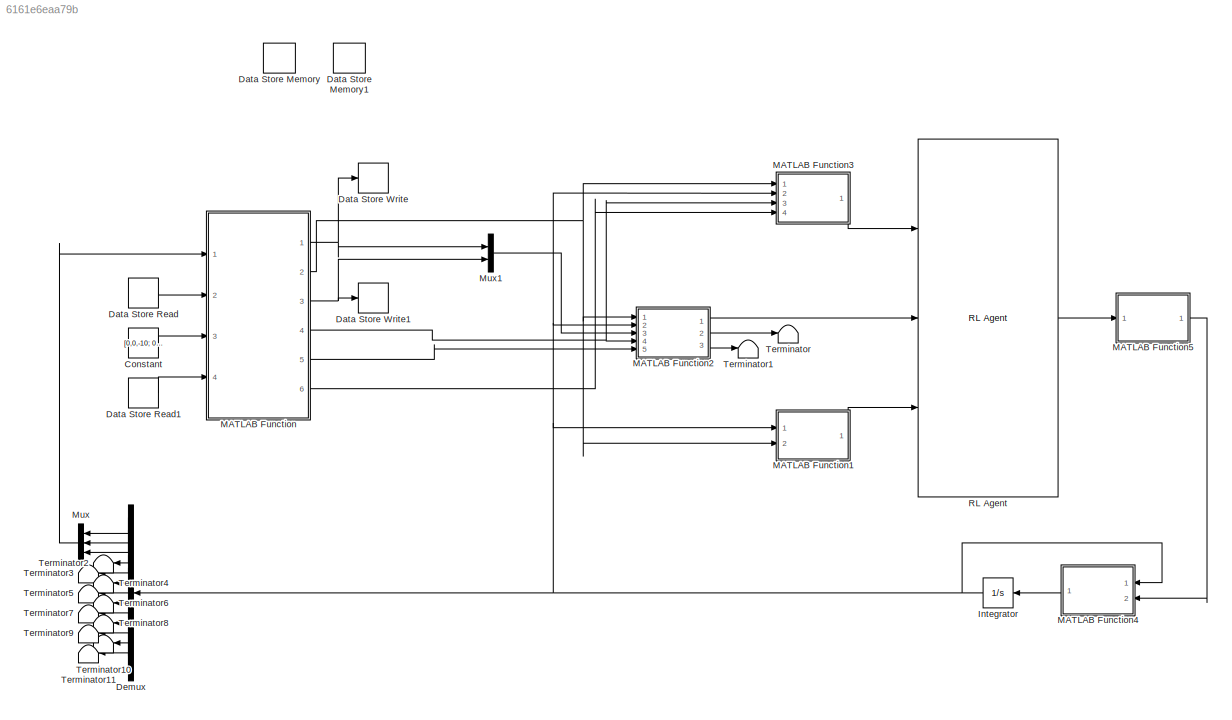
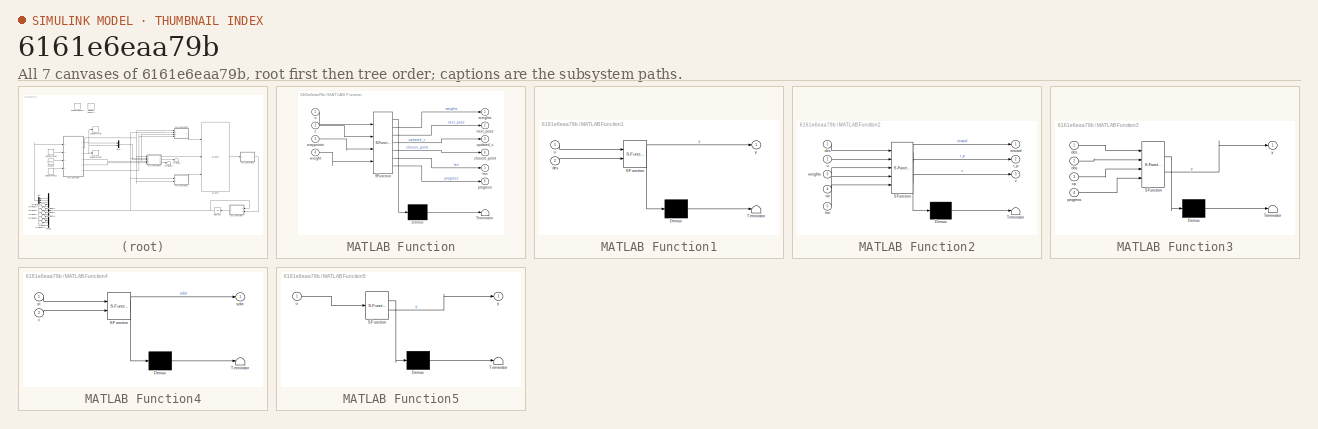
[diagram: thumbnail index - all 7 canvases of the model, root first then tree order]
MODEL slx_6161e6eaa79b
KIND model
CONFIG AbsTol = auto
CONFIG EnableMultiTasking = off
CONFIG FixedStep = auto
CONFIG MaxStep = auto
CONFIG MinStep = auto
CONFIG RelTol = 1e-3
CONFIG SampleTimeConstraint = Unconstrained
CONFIG SolverName = VariableStepAuto
CONFIG StartTime = 0.0
CONFIG StopTime = 10.0
BLOCK [Constant] Constant
  SampleTime = -1
  Value = [0,0,-10; 0.5,0,-10; 1,0,-10; 1.5,0,-10; 2,0,-10; 2.5,0,-10; 2.5,0.5,-10; 2.5,1,-10; 2.5,1.5,-10; 2.5,2,-10; 2.5,2.5,-10; 2,2.5,-10; 1.5,2.5,-10; 1,2.5,-10; 0.5,2.5,-10; 0,2.5,-10;  0,2,-10;  0,1.5,-10;  0,1,-10;  0,0.5,-10;  0,0,-10]
BLOCK [DataStoreMemory] Data Store Memory
  DataStoreName = c
  InitialValue = 1
  ReadBeforeWriteMsg = warning
  ShowAdditionalParam = off
  WriteAfterReadMsg = warning
  WriteAfterWriteMsg = warning
BLOCK [DataStoreMemory] Data Store Memory1
  DataStoreName = weights
  ReadBeforeWriteMsg = warning
  ShowAdditionalParam = off
  WriteAfterReadMsg = warning
  WriteAfterWriteMsg = warning
BLOCK [DataStoreRead] Data Store Read
  DataStoreName = c
  IndexOptions = Index vector (dialog)
  Indices = 1
  OutputSizes = 1
  Ports = [0, 1]
BLOCK [DataStoreRead] Data Store Read1
  DataStoreName = weights
  IndexOptions = Index vector (dialog)
  Indices = 1
  OutputSizes = 1
  Ports = [0, 1]
BLOCK [DataStoreWrite] Data Store Write
  DataStoreName = weights
  IndexOptions = Index vector (dialog)
  Indices = 1
  OutputSizes = 1
  Ports = [1]
BLOCK [DataStoreWrite] Data Store Write1
  DataStoreName = c
  IndexOptions = Index vector (dialog)
  Indices = 1
  OutputSizes = 1
  Ports = [1]
BLOCK [Demux] Demux
  Outputs = 13
  Ports = [1, 13]
BLOCK [Integrator] Integrator
  Ports = [1, 1]
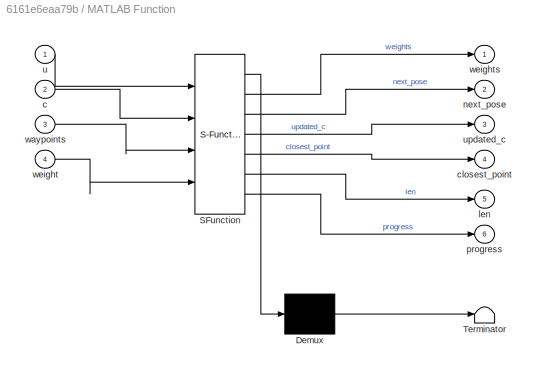
BLOCK [SubSystem] MATLAB Function
  ErrorFcn = Stateflow.Translate.translate
  PermitHierarchicalResolution = ExplicitOnly
  Ports = [4, 6]
  RequestExecContextInheritance = off
  SFBlockType = MATLAB Function
  TreatAsAtomicUnit = on
BLOCK [Demux] MATLAB Function/ Demux 
  Outputs = 1
  Ports = [1, 1]
BLOCK [S-Function] MATLAB Function/ SFunction 
  EnableBusSupport = on
  FunctionName = sf_sfun
  PortCounts = [4 7]
  Ports = [4, 7]
  SFcnIsStateOwnerBlock = off
  SFunctionDeploymentMode = off
  Tag = Stateflow S-Function 2
BLOCK [Terminator] MATLAB Function/ Terminator 
BLOCK [Inport] MATLAB Function/c
  Port = 2
BLOCK [Outport] MATLAB Function/closest_point
  Port = 4
BLOCK [Outport] MATLAB Function/len
  Port = 5
BLOCK [Outport] MATLAB Function/next_pose
  Port = 2
BLOCK [Outport] MATLAB Function/progress
  Port = 6
BLOCK [Inport] MATLAB Function/u
BLOCK [Outport] MATLAB Function/updated_c
  Port = 3
BLOCK [Inport] MATLAB Function/waypoints
  Port = 3
BLOCK [Inport] MATLAB Function/weight
  Port = 4
BLOCK [Outport] MATLAB Function/weights
BLOCK [SubSystem] MATLAB Function1
  ErrorFcn = Stateflow.Translate.translate
  PermitHierarchicalResolution = ExplicitOnly
  Ports = [2, 1]
  RequestExecContextInheritance = off
  SFBlockType = MATLAB Function
  TreatAsAtomicUnit = on
BLOCK [Demux] MATLAB Function1/ Demux 
  Outputs = 1
  Ports = [1, 1]
BLOCK [S-Function] MATLAB Function1/ SFunction 
  EnableBusSupport = on
  FunctionName = sf_sfun
  PortCounts = [2 2]
  Ports = [2, 2]
  SFcnIsStateOwnerBlock = off
  SFunctionDeploymentMode = off
  Tag = Stateflow S-Function 1
BLOCK [Terminator] MATLAB Function1/ Terminator 
BLOCK [Inport] MATLAB Function1/des
  Port = 2
BLOCK [Inport] MATLAB Function1/u
BLOCK [Outport] MATLAB Function1/y
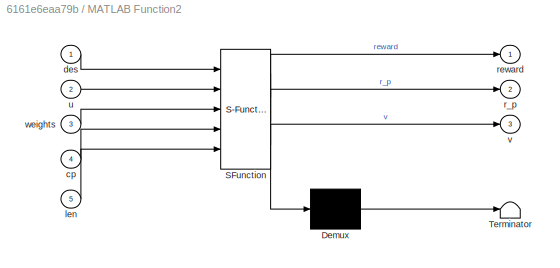
BLOCK [SubSystem] MATLAB Function2
  ErrorFcn = Stateflow.Translate.translate
  PermitHierarchicalResolution = ExplicitOnly
  Ports = [5, 3]
  RequestExecContextInheritance = off
  SFBlockType = MATLAB Function
  TreatAsAtomicUnit = on
BLOCK [Demux] MATLAB Function2/ Demux 
  Outputs = 1
  Ports = [1, 1]
BLOCK [S-Function] MATLAB Function2/ SFunction 
  EnableBusSupport = on
  FunctionName = sf_sfun
  PortCounts = [5 4]
  Ports = [5, 4]
  SFcnIsStateOwnerBlock = off
  SFunctionDeploymentMode = off
  Tag = Stateflow S-Function 3
BLOCK [Terminator] MATLAB Function2/ Terminator 
BLOCK [Inport] MATLAB Function2/cp
  Port = 4
BLOCK [Inport] MATLAB Function2/des
BLOCK [Inport] MATLAB Function2/len
  Port = 5
BLOCK [Outport] MATLAB Function2/r_p
  Port = 2
BLOCK [Outport] MATLAB Function2/reward
BLOCK [Inport] MATLAB Function2/u
  Port = 2
BLOCK [Outport] MATLAB Function2/v
  Port = 3
BLOCK [Inport] MATLAB Function2/weights
  Port = 3
BLOCK [SubSystem] MATLAB Function3
  ErrorFcn = Stateflow.Translate.translate
  PermitHierarchicalResolution = ExplicitOnly
  Ports = [4, 1]
  RequestExecContextInheritance = off
  SFBlockType = MATLAB Function
  TreatAsAtomicUnit = on
BLOCK [Demux] MATLAB Function3/ Demux 
  Outputs = 1
  Ports = [1, 1]
BLOCK [S-Function] MATLAB Function3/ SFunction 
  EnableBusSupport = on
  FunctionName = sf_sfun
  PortCounts = [4 2]
  Ports = [4, 2]
  SFcnIsStateOwnerBlock = off
  SFunctionDeploymentMode = off
  Tag = Stateflow S-Function 4
BLOCK [Terminator] MATLAB Function3/ Terminator 
BLOCK [Inport] MATLAB Function3/cp
  Port = 3
BLOCK [Inport] MATLAB Function3/des
BLOCK [Inport] MATLAB Function3/obs
  Port = 2
BLOCK [Inport] MATLAB Function3/progress
  Port = 4
BLOCK [Outport] MATLAB Function3/y
BLOCK [SubSystem] MATLAB Function4
  ErrorFcn = Stateflow.Translate.translate
  PermitHierarchicalResolution = ExplicitOnly
  Ports = [2, 1]
  RequestExecContextInheritance = off
  SFBlockType = MATLAB Function
  TreatAsAtomicUnit = on
BLOCK [Demux] MATLAB Function4/ Demux 
  Outputs = 1
  Ports = [1, 1]
BLOCK [S-Function] MATLAB Function4/ SFunction 
  EnableBusSupport = on
  FunctionName = sf_sfun
  PortCounts = [2 2]
  Ports = [2, 2]
  SFcnIsStateOwnerBlock = off
  SFunctionDeploymentMode = off
  Tag = Stateflow S-Function 5
BLOCK [Terminator] MATLAB Function4/ Terminator 
BLOCK [Inport] MATLAB Function4/c
  Port = 2
BLOCK [Outport] MATLAB Function4/sdot
BLOCK [Inport] MATLAB Function4/st
BLOCK [SubSystem] MATLAB Function5
  ErrorFcn = Stateflow.Translate.translate
  PermitHierarchicalResolution = ExplicitOnly
  Ports = [1, 1]
  RequestExecContextInheritance = off
  SFBlockType = MATLAB Function
  TreatAsAtomicUnit = on
BLOCK [Demux] MATLAB Function5/ Demux 
  Outputs = 1
  Ports = [1, 1]
BLOCK [S-Function] MATLAB Function5/ SFunction 
  EnableBusSupport = on
  FunctionName = sf_sfun
  PortCounts = [1 2]
  Ports = [1, 2]
  SFcnIsStateOwnerBlock = off
  SFunctionDeploymentMode = off
  Tag = Stateflow S-Function 6
BLOCK [Terminator] MATLAB Function5/ Terminator 
BLOCK [Inport] MATLAB Function5/u
BLOCK [Outport] MATLAB Function5/y
BLOCK [Mux] Mux
  DisplayOption = bar
  Inputs = 3
  Ports = [3, 1]
BLOCK [Mux] Mux1
  DisplayOption = bar
  Inputs = 2
  Ports = [2, 1]
BLOCK [Reference] RL Agent  REF=rllib/RL Agent
  Ports = [3, 1]
  SourceBlock = rllib/RL Agent
  SourceProductBaseCode = RL
  SourceType = RL Agent
BLOCK [Terminator] Terminator
BLOCK [Terminator] Terminator1
BLOCK [Terminator] Terminator10
BLOCK [Terminator] Terminator11
BLOCK [Terminator] Terminator2
BLOCK [Terminator] Terminator3
BLOCK [Terminator] Terminator4
BLOCK [Terminator] Terminator5
BLOCK [Terminator] Terminator6
BLOCK [Terminator] Terminator7
BLOCK [Terminator] Terminator8
BLOCK [Terminator] Terminator9
LINE Constant:1 -> MATLAB Function:3
LINE Data Store Read1:1 -> MATLAB Function:4
LINE Data Store Read:1 -> MATLAB Function:2
LINE Demux:1 -> Mux:1
LINE Demux:10 -> Terminator8:1
LINE Demux:11 -> Terminator9:1
LINE Demux:12 -> Terminator10:1
LINE Demux:13 -> Terminator11:1
LINE Demux:2 -> Mux:2
LINE Demux:3 -> Mux:3
LINE Demux:4 -> Terminator2:1
LINE Demux:5 -> Terminator3:1
LINE Demux:6 -> Terminator4:1
LINE Demux:7 -> Terminator5:1
LINE Demux:8 -> Terminator6:1
LINE Demux:9 -> Terminator7:1
NET Integrator:1 -> Demux:1, MATLAB Function1:1, MATLAB Function2:2, MATLAB Function3:2, MATLAB Function4:1
LINE MATLAB Function1:1 -> RL Agent:3
LINE MATLAB Function2:1 -> RL Agent:2
LINE MATLAB Function2:2 -> Terminator:1
LINE MATLAB Function2:3 -> Terminator1:1
LINE MATLAB Function3:1 -> RL Agent:1
LINE MATLAB Function4:1 -> Integrator:1
LINE MATLAB Function5:1 -> MATLAB Function4:2
NET MATLAB Function:1 -> Data Store Write:1, Mux1:1
NET MATLAB Function:2 -> MATLAB Function1:2, MATLAB Function2:1, MATLAB Function3:1
NET MATLAB Function:3 -> Data Store Write1:1, Mux1:2
NET MATLAB Function:4 -> MATLAB Function2:4, MATLAB Function3:3
LINE MATLAB Function:5 -> MATLAB Function2:5
LINE MATLAB Function:6 -> MATLAB Function3:4
LINE Mux1:1 -> MATLAB Function2:3
LINE Mux:1 -> MATLAB Function:1
LINE RL Agent:1 -> MATLAB Function5:1
note: NET lines group one-source signal fan-out (src -> all destinations, sorted); 1:1 wires keep LINE
CHART MATLAB Function1 states=1 transitions=1
  STATE_LABEL 'eML_blk_kernel()'
  STATE_LABEL 'SCRIPT:\nfunction y = fcn(u,des)\nif u(3) < 0 && norm(u(1:3) - des(1:3)) < 10 && norm(u(4:6)) < 1\n    y = 0;\nelse\n    y = 1;\nend'
CHART MATLAB Function states=1 transitions=1
  STATE_LABEL 'eML_blk_kernel()'
  STATE_LABEL "SCRIPT:\nfunction [weights, next_pose,updated_c,closest_point,len,progress] = fcn(u,c,waypoints,weight)\nlen = size(waypoints,1);\nif c<len+1\n    np = waypoints(c,:).';\nelse\n    np = waypoints(len,:).';\nend\nif norm(u-np) < 0.03 && c<len+1\n    updated_c = c + 1;\n    w_v = weight + 1.0;\nelse\n    updated_c = c;\n    w_v = weight;\nend\nif c<=len\n    np = waypoints(updated_c,:).';\nelse\n    % w_v = 0.25*len-...<+515ch>"
CHART MATLAB Function2 states=1 transitions=1
  STATE_LABEL 'eML_blk_kernel()'
  STATE_LABEL 'SCRIPT:\nfunction [reward,r_p,v] = fcn(des, u, weights,cp,len)\ndesired_pos = [des(1); des(2); des(3)];\n% desired_v = [des(4); des(5); des(6)];\ndesired_vel = des(4);\n% desired_o = [des(7), des(8), des(9)];\n% desired_av = [des(10); des(11); des(12)];\n% weights for different component of reward\nw_p = weights(1);\n% w_v = weights(1);\n% w_o = 1.0;\n% w_av = 0;\n% w_collision = 10^5;\n% Extract values from o...<+657ch>'
CHART MATLAB Function3 states=1 transitions=1
  STATE_LABEL 'eML_blk_kernel()'
  STATE_LABEL 'SCRIPT:\nfunction y = fcn(des, obs, cp, progress)\n% Normalizing\nstd_pos = 10;\nstd_vel = 2;\nstd_o = pi;\nstd_av = 25;\nnorm_pos = (des(1:3)-obs(1:3))/std_pos;\nnorm_vel = obs(4:6)/std_vel;\nnorm_cp = (obs(1:3) - cp)/std_pos;\ny = [norm_pos; norm_cp; des(4)-norm(obs(4:6)); norm_vel; obs(7:9)/std_o; obs(10:12)/std_av;progress];'
CHART MATLAB Function4 states=1 transitions=1
  STATE_LABEL 'eML_blk_kernel()'
  STATE_LABEL 'SCRIPT:\nfunction sdot = fcn(st, c)\nmodel = multirotor;\ns = state(model);\ns(1:13) = st;\nu = control(model);\nu.Roll = c(1);\nu.Pitch = c(2);\nu.YawRate = c(3);\nu.Thrust = c(4);\ne = environment(model);\nsdot = derivative(model,s,u,e);'
CHART MATLAB Function5 states=1 transitions=1
  STATE_LABEL 'eML_blk_kernel()'
  STATE_LABEL 'SCRIPT:\nfunction y = fcn(u)\nc1 = ((u(1) + 1) * (pi/2) / 2) - pi/4;\nc2 = ((u(2) + 1) * (pi/2) / 2) - pi/4;\nc3 = ((u(3) + 1) * (pi/2) / 2) - pi/4;\nc4 = ((u(4) + 1) * (10) / 2) - 5;\ny = [c1;c2;c3;c4];'
CHART  states=0 transitions=0
CHART  states=0 transitions=0
CHART  states=0 transitions=0
CHART  states=0 transitions=0
CHART  states=0 transitions=0
CHART  states=0 transitions=0
